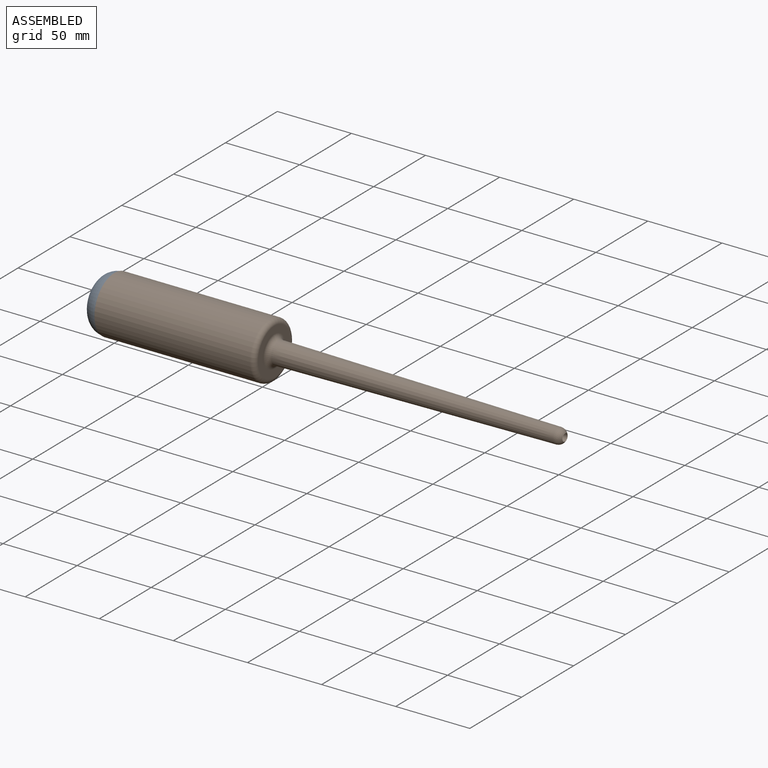
[diagram: assembled view]
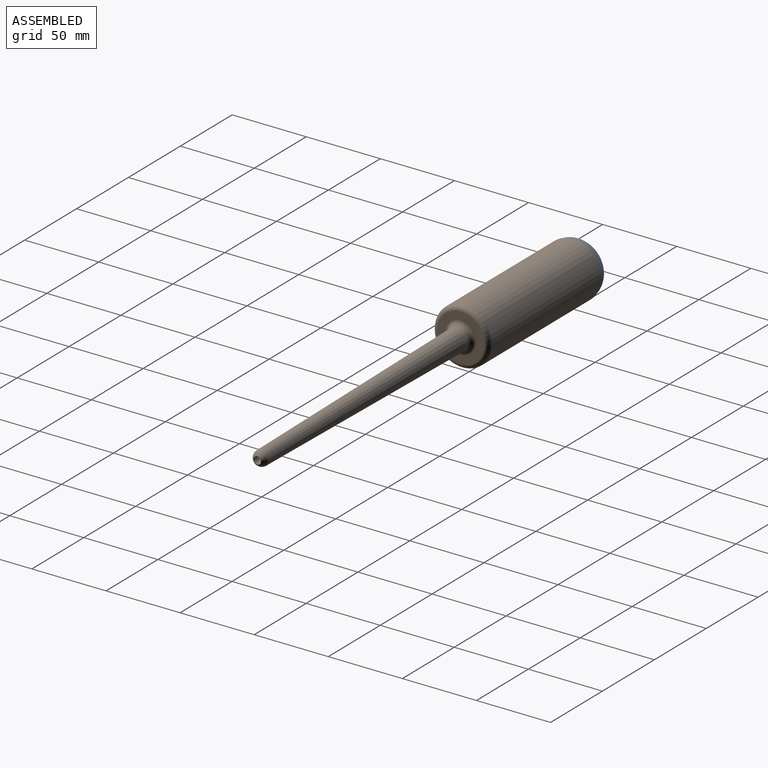
[diagram: assembled view, second angle]
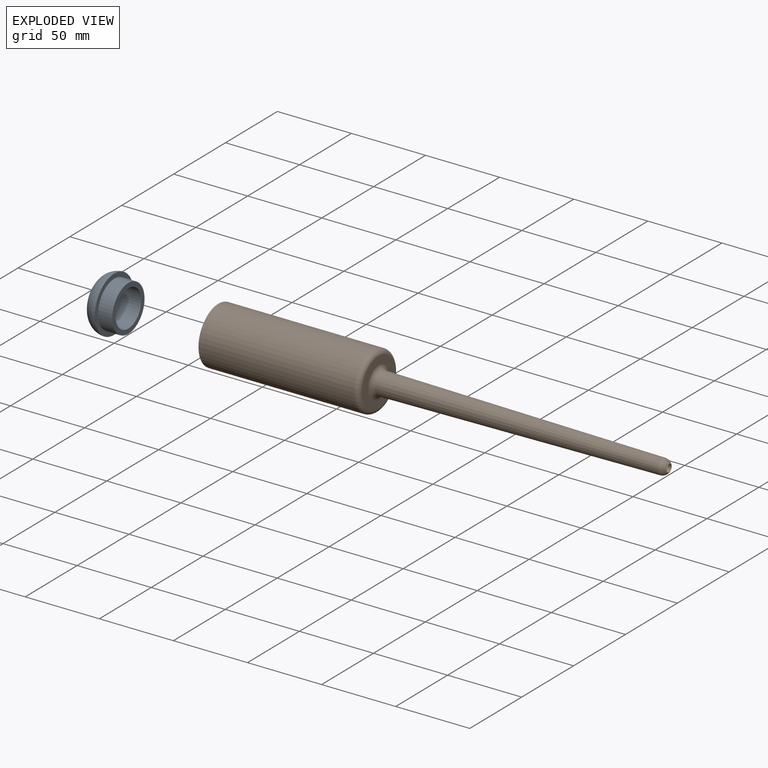
[diagram: exploded view]
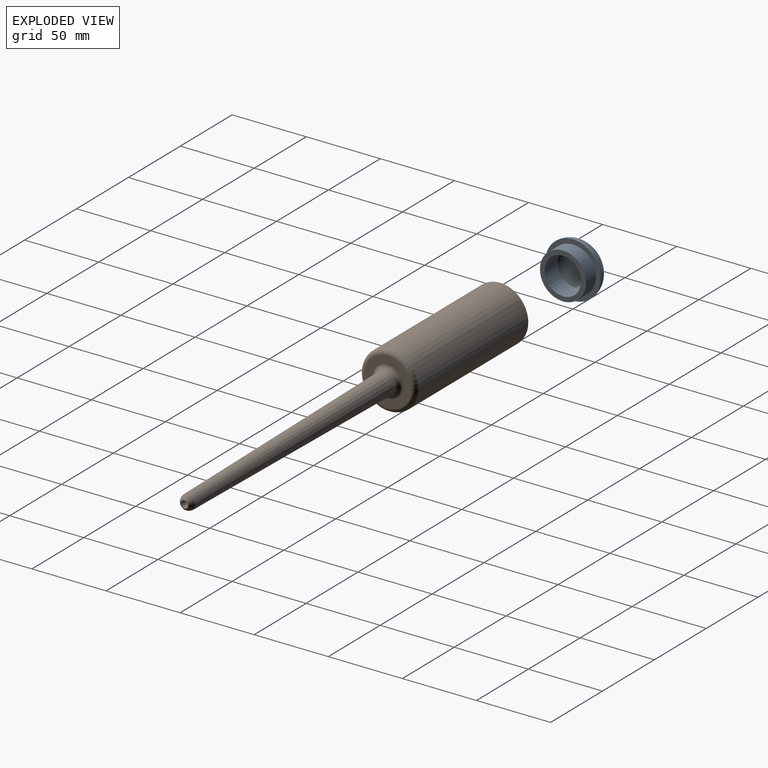
[diagram: exploded view, second angle]
ASSEMBLY  parts=2 mates=2
PART A: 9 faces, bbox 19.9x37.4x37.4 mm
  f0: torus R=8.42mm, axis (-1,0,0), area 657.7mm2, adj f1,f8
  f1: plane 31.08x31.08mm, normal (-1,0,0), area 278.4mm2, adj f0,f2
  f2: cylinder r=12.37mm len=24.73mm, axis (-1,0,0), area 990.9mm2, adj f1,f3
  f3: plane 31.08x31.08mm, normal (1,0,0), area 278.4mm2, adj f2,f4
  f4: cylinder r=15.54mm len=31.08mm, axis (-1,0,0), area 935.3mm2, adj f3,f5
  f5: plane 37.43x37.43mm, normal (1,0,0), area 341.7mm2, adj f4,f6
  f6: torus R=8.42mm, axis (-1,0,0), area 1521.6mm2, adj f5,f7
  f7: plane 16.85x16.85mm, normal (-1,0,0), area 222.9mm2, adj f6
  f8: plane 16.85x16.85mm, normal (1,0,0), area 222.9mm2, adj f0
PART B: 12 faces, bbox 304.2x41.2x41.2 mm
  f0: cone r=7.46mm half-angle=0.7deg, axis (-1,0,0), area 7418.8mm2, adj f1,f11
  f1: torus R=10.63mm, axis (-1,0,0), area 272.6mm2, adj f0,f2
  f2: plane 31.75x31.75mm, normal (1,0,0), area 433.7mm2, adj f1,f3
  f3: torus R=15.88mm, axis (-1,0,0), area 560.8mm2, adj f2,f4
  f4: cylinder r=19.05mm len=105mm, axis (-1,0,0), area 12567.9mm2, adj f3,f5
  f5: plane 38.1x38.1mm, normal (-1,0,0), area 348.4mm2, adj f4,f6
  f6: cylinder r=15.88mm len=101.83mm, axis (-1,0,0), area 10156.6mm2, adj f5,f7
  f7: torus R=12.7mm, axis (-1,0,0), area 461.3mm2, adj f6,f8
  f8: plane 25.4x25.4mm, normal (-1,0,0), area 298.8mm2, adj f7,f9
  f9: torus R=8.14mm, axis (-1,0,0), area 190.4mm2, adj f8,f10
  f10: cone r=2.51mm half-angle=0.7deg, axis (-1,0,0), area 4600.5mm2, adj f9,f11
  f11: sphere r=5.06mm, area 135.9mm2, adj f0,f10
PLACE A t=(63.3,-0.7,0)mm
PLACE B at identity
MATE slider A.f2 <-> B.f4  axis (1,0,0) through (0,0,0)mm
MATE slider A.f2 <-> B.f4  axis (1,0,0) through (9.58,0,0)mm
